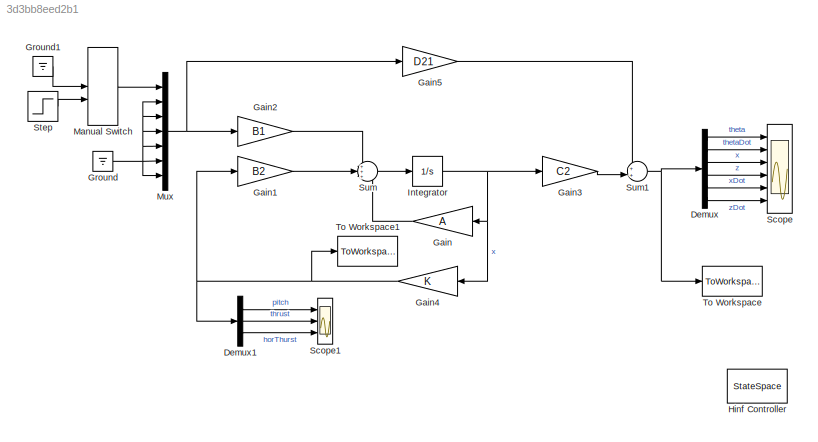
MODEL slx_3d3bb8eed2b1
KIND model
CONFIG AbsTol = auto
CONFIG EnableMultiTasking = off
CONFIG FixedStep = auto
CONFIG MaxStep = auto
CONFIG MinStep = auto
CONFIG RelTol = 1e-3
CONFIG SampleTimeConstraint = Unconstrained
CONFIG SolverName = VariableStepAuto
CONFIG StartTime = 0.0
CONFIG StopTime = 20
BLOCK [Demux] Demux
  Outputs = 6
  Ports = [1, 6]
BLOCK [Demux] Demux1
  Outputs = 3
  Ports = [1, 3]
BLOCK [Gain] Gain
  Gain = A
  Multiplication = Matrix(K*u)
  NameLocation = top
BLOCK [Gain] Gain1
  Gain = B2
  Multiplication = Matrix(K*u)
BLOCK [Gain] Gain2
  Gain = B1
  Multiplication = Matrix(K*u)
BLOCK [Gain] Gain3
  Gain = C2
  Multiplication = Matrix(K*u)
BLOCK [Gain] Gain4
  Gain = K
  Multiplication = Matrix(K*u)
  NameLocation = top
BLOCK [Gain] Gain5
  Gain = D21
  Multiplication = Matrix(K*u)
BLOCK [Ground] Ground
BLOCK [Ground] Ground1
BLOCK [StateSpace] Hinf Controller
  A = ACmp
  B = BCmp
  C = CCmp
  Commented = on
  D = DCmp
  InitialCondition = 0
  Ports = [1, 1]
BLOCK [Integrator] Integrator
  InitialCondition = xInit
  NameLocation = top
  Ports = [1, 1]
BLOCK [ManualSwitch] Manual Switch
BLOCK [Mux] Mux
  DisplayOption = bar
  Inputs = 7
  Ports = [7, 1]
BLOCK [Scope] Scope
  Floating = off
  NumInputPorts = 6
  Ports = [6]
  ScopeSpecificationString = Simulink.scopes.TimeScopeBlockCfg('CurrentConfiguration', extmgr.ConfigurationSet(extmgr.Configuration('Core','General UI',true),extmgr.Configuration('Core','Source UI',true),extmgr.Configuration('Sources','WiredSimulink',true),extmgr.Configuration('Visuals','Time Domain',true,'SerializedDisplays',{struct('MinYLimReal','-0.02205','MaxYLimReal','0.10625','YLabelReal','','MinYLimMag','0.00000','MaxY...<+4713ch>
BLOCK [Scope] Scope1
  Floating = off
  NumInputPorts = 3
  Ports = [3]
  ScopeSpecificationString = Simulink.scopes.TimeScopeBlockCfg('CurrentConfiguration', extmgr.ConfigurationSet(extmgr.Configuration('Core','General UI',true),extmgr.Configuration('Core','Source UI',true),extmgr.Configuration('Sources','WiredSimulink',true,'DataLoggingVariableName','ScopeData1'),extmgr.Configuration('Visuals','Time Domain',true,'SerializedDisplays',{struct('MinYLimReal','-0.09724','MaxYLimReal','0.04845','YLab...<+2702ch>
BLOCK [Step] Step
  SampleTime = 0
  Time = 10
BLOCK [Sum] Sum
  Inputs = +++
  Ports = [3, 1]
BLOCK [Sum] Sum1
  Inputs = ++|
  Ports = [2, 1]
BLOCK [ToWorkspace] To Workspace
  FixptAsFi = on
  MaxDataPoints = inf
  Ports = [1]
  SampleTime = -1
  VariableName = y
BLOCK [ToWorkspace] To Workspace1
  FixptAsFi = on
  MaxDataPoints = inf
  Ports = [1]
  SampleTime = -1
  VariableName = u
LINE Demux1:1 -> Scope1:1
LINE Demux1:2 -> Scope1:2
LINE Demux1:3 -> Scope1:3
LINE Demux:1 -> Scope:1
LINE Demux:2 -> Scope:2
LINE Demux:3 -> Scope:3
LINE Demux:4 -> Scope:4
LINE Demux:5 -> Scope:5
LINE Demux:6 -> Scope:6
LINE Gain1:1 -> Sum:2
LINE Gain2:1 -> Sum:1
LINE Gain3:1 -> Sum1:2
NET Gain4:1 -> Demux1:1, Gain1:1, To Workspace1:1
LINE Gain5:1 -> Sum1:1
LINE Gain:1 -> Sum:3
LINE Ground1:1 -> Manual Switch:1
NET Ground:1 -> Mux:2, Mux:3, Mux:4, Mux:5, Mux:6, Mux:7
NET Integrator:1 -> Gain3:1, Gain4:1, Gain:1
LINE Manual Switch:1 -> Mux:1
NET Mux:1 -> Gain2:1, Gain5:1
LINE Step:1 -> Manual Switch:2
NET Sum1:1 -> Demux:1, To Workspace:1
LINE Sum:1 -> Integrator:1
note: NET lines group one-source signal fan-out (src -> all destinations, sorted); 1:1 wires keep LINE
